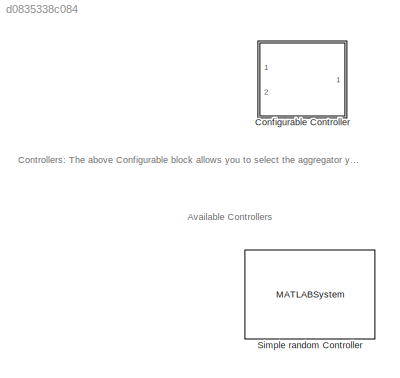
MODEL slx_d0835338c084
KIND library
CONFIG AbsTol = auto
CONFIG FixedStep = auto
CONFIG MaxStep = auto
CONFIG MinStep = auto
CONFIG RelTol = 1e-3
CONFIG SampleTimeConstraint = Unconstrained
CONFIG Solver = ode45
CONFIG SolverMode = Auto
CONFIG SolverName = ode45
CONFIG StartTime = 0.0
CONFIG StopTime = 10.0
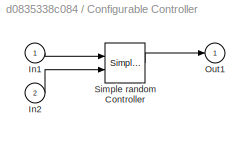
BLOCK [SubSystem] Configurable Controller
  BlockChoice = Simple random Controller
  MemberBlocks = Simple random Controller
  Ports = [2, 1]
  RequestExecContextInheritance = off
  TemplateBlock = self
BLOCK [Inport] Configurable Controller/In1
  IconDisplay = Port number
BLOCK [Inport] Configurable Controller/In2
  IconDisplay = Port number
  Port = 2
BLOCK [Outport] Configurable Controller/Out1
  IconDisplay = Port number
BLOCK [Reference] Configurable Controller/Simple random Controller  REF=libControllers/Simple random Controller
  Ports = [2, 1]
  SourceBlock = libControllers/Simple random Controller
  SourceType = db_Controller_mtlbSysBlock
  db_name = WaterHeaters
  db_password = unb.sql.2015
  db_username = sw_waterheaters
BLOCK [MATLABSystem] Simple random Controller
  MaskDisplay = disp('Controller');\nport_label('input',1,'aggIn');\nport_label('input',2,'unitIDs');\nport_label('output',1,'ctrlOut');
  MaskType = db_Controller_mtlbSysBlock
  Ports = [2, 1]
  System = db_Controller_mtlbSysBlock
  db_name = HeatingUnits
  db_password = unb.sql.2015
  db_username = sw_ETS
ANNOTATION (root): Controllers: The above Configurable block allows you to select the aggregator you can use in your design.
ANNOTATION (root): Available Controllers
LINE Configurable Controller/In1:1 -> Configurable Controller/Simple random Controller:1
LINE Configurable Controller/In2:1 -> Configurable Controller/Simple random Controller:2
LINE Configurable Controller/Simple random Controller:1 -> Configurable Controller/Out1:1
